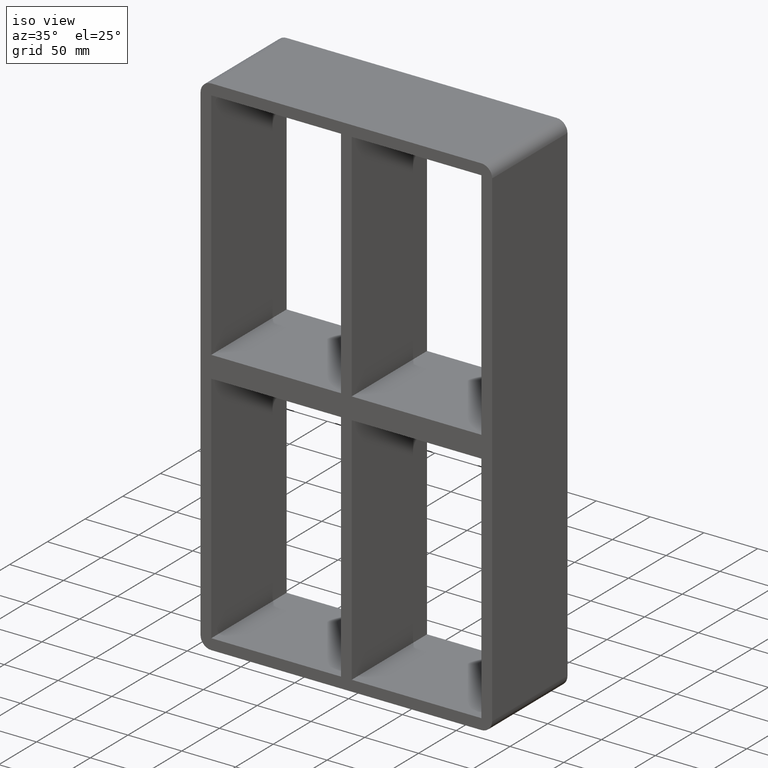
[diagram: clean part render]
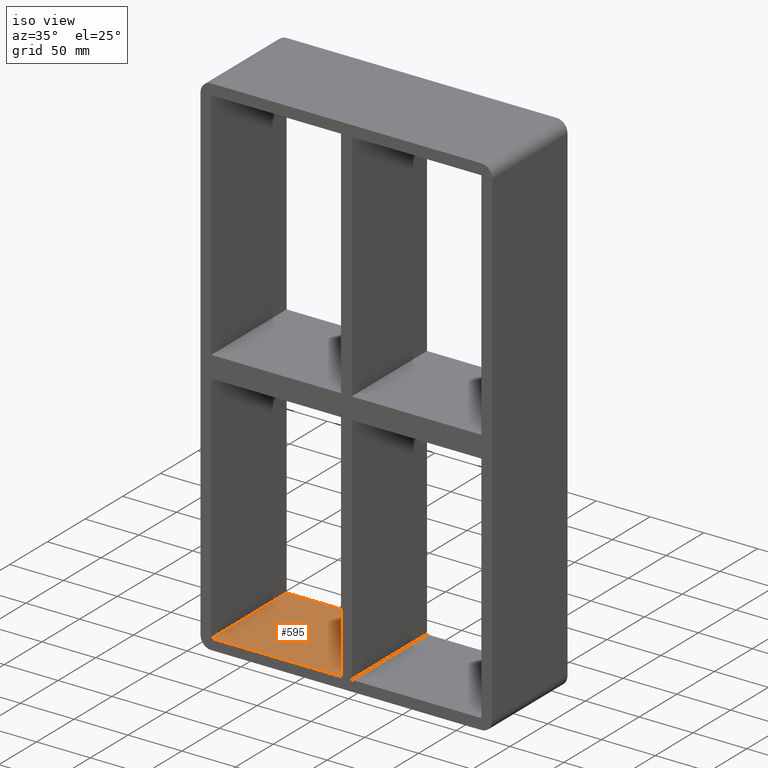
[diagram: same view with one face highlighted and labeled with its STEP entity id]
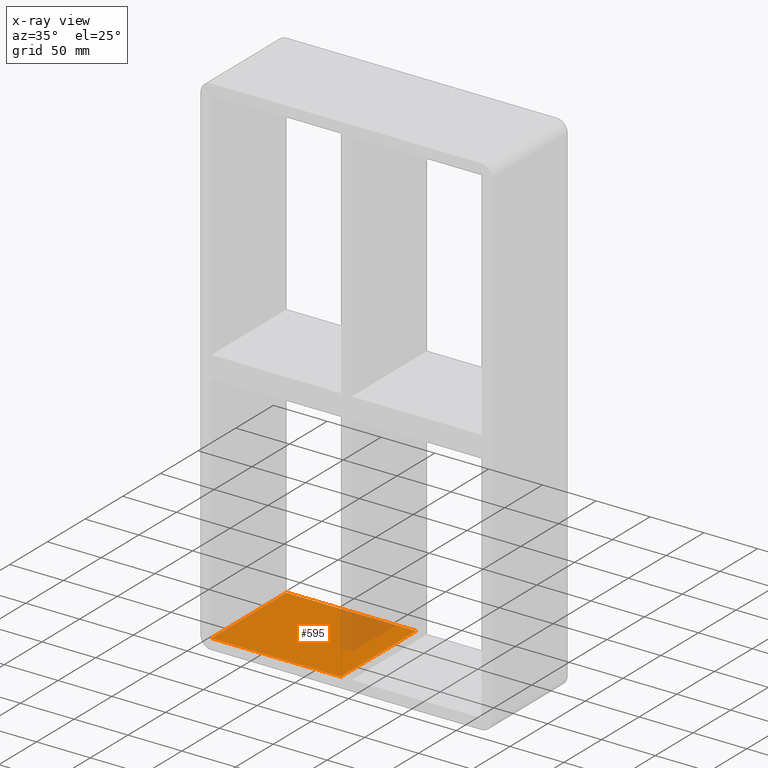
[diagram: x-ray of the same camera — body ghosted, the highlighted face saturated]
A machine part, iso view. The second image highlights one B-rep face of the part: STEP entity #595.
The next image is the same camera in x-ray: the body ghosted, the highlighted face saturated — about 15% of this face is hidden behind the body in this view.
In plain terms, the highlighted planar face has unit normal (0, 0, -1).
Its self-contained STEP definition (entity closure, byte-faithful):
#396=CARTESIAN_POINT('',(-125.5,97.0,-228.0));
#397=VERTEX_POINT('',#396);
#404=CARTESIAN_POINT('',(-5.00000000000119,97.0,-228.00000000000006));
#405=VERTEX_POINT('',#404);
#406=CARTESIAN_POINT('',(-125.50000000000003,97.0,-228.0));
#407=DIRECTION('',(1.0,0.0,0.0));
#408=VECTOR('',#407,120.49999999999883);
#409=LINE('',#406,#408);
#410=EDGE_CURVE('',#397,#405,#409,.T.);
#531=CARTESIAN_POINT('',(-5.00000000000119,-3.0,-228.00000000000006));
#532=VERTEX_POINT('',#531);
#533=CARTESIAN_POINT('',(-5.00000000000119,-3.0,-228.0));
#534=DIRECTION('',(0.0,1.0,0.0));
#535=VECTOR('',#534,100.0);
#536=LINE('',#533,#535);
#537=EDGE_CURVE('',#532,#405,#536,.T.);
#572=CARTESIAN_POINT('',(125.5,0.0,-228.0));
#573=DIRECTION('',(0.0,0.0,-1.0));
#574=DIRECTION('',(-1.0,0.0,0.0));
#575=AXIS2_PLACEMENT_3D('',#572,#573,#574);
#576=PLANE('',#575);
#577=ORIENTED_EDGE('',*,*,#537,.T.);
#578=ORIENTED_EDGE('',*,*,#410,.F.);
#579=CARTESIAN_POINT('',(-125.5,-3.0,-228.0));
#580=VERTEX_POINT('',#579);
#581=CARTESIAN_POINT('',(-125.5,-3.0,-228.0));
#582=DIRECTION('',(0.0,1.0,0.0));
#583=VECTOR('',#582,100.0);
#584=LINE('',#581,#583);
#585=EDGE_CURVE('',#580,#397,#584,.T.);
#586=ORIENTED_EDGE('',*,*,#585,.F.);
#587=CARTESIAN_POINT('',(-5.000000000001194,-3.0,-228.0));
#588=DIRECTION('',(-1.0,0.0,0.0));
#589=VECTOR('',#588,120.49999999999883);
#590=LINE('',#587,#589);
#591=EDGE_CURVE('',#532,#580,#590,.T.);
#592=ORIENTED_EDGE('',*,*,#591,.F.);
#593=EDGE_LOOP('',(#577,#578,#586,#592));
#594=FACE_OUTER_BOUND('',#593,.T.);
#595=ADVANCED_FACE('',(#594),#576,.F.);